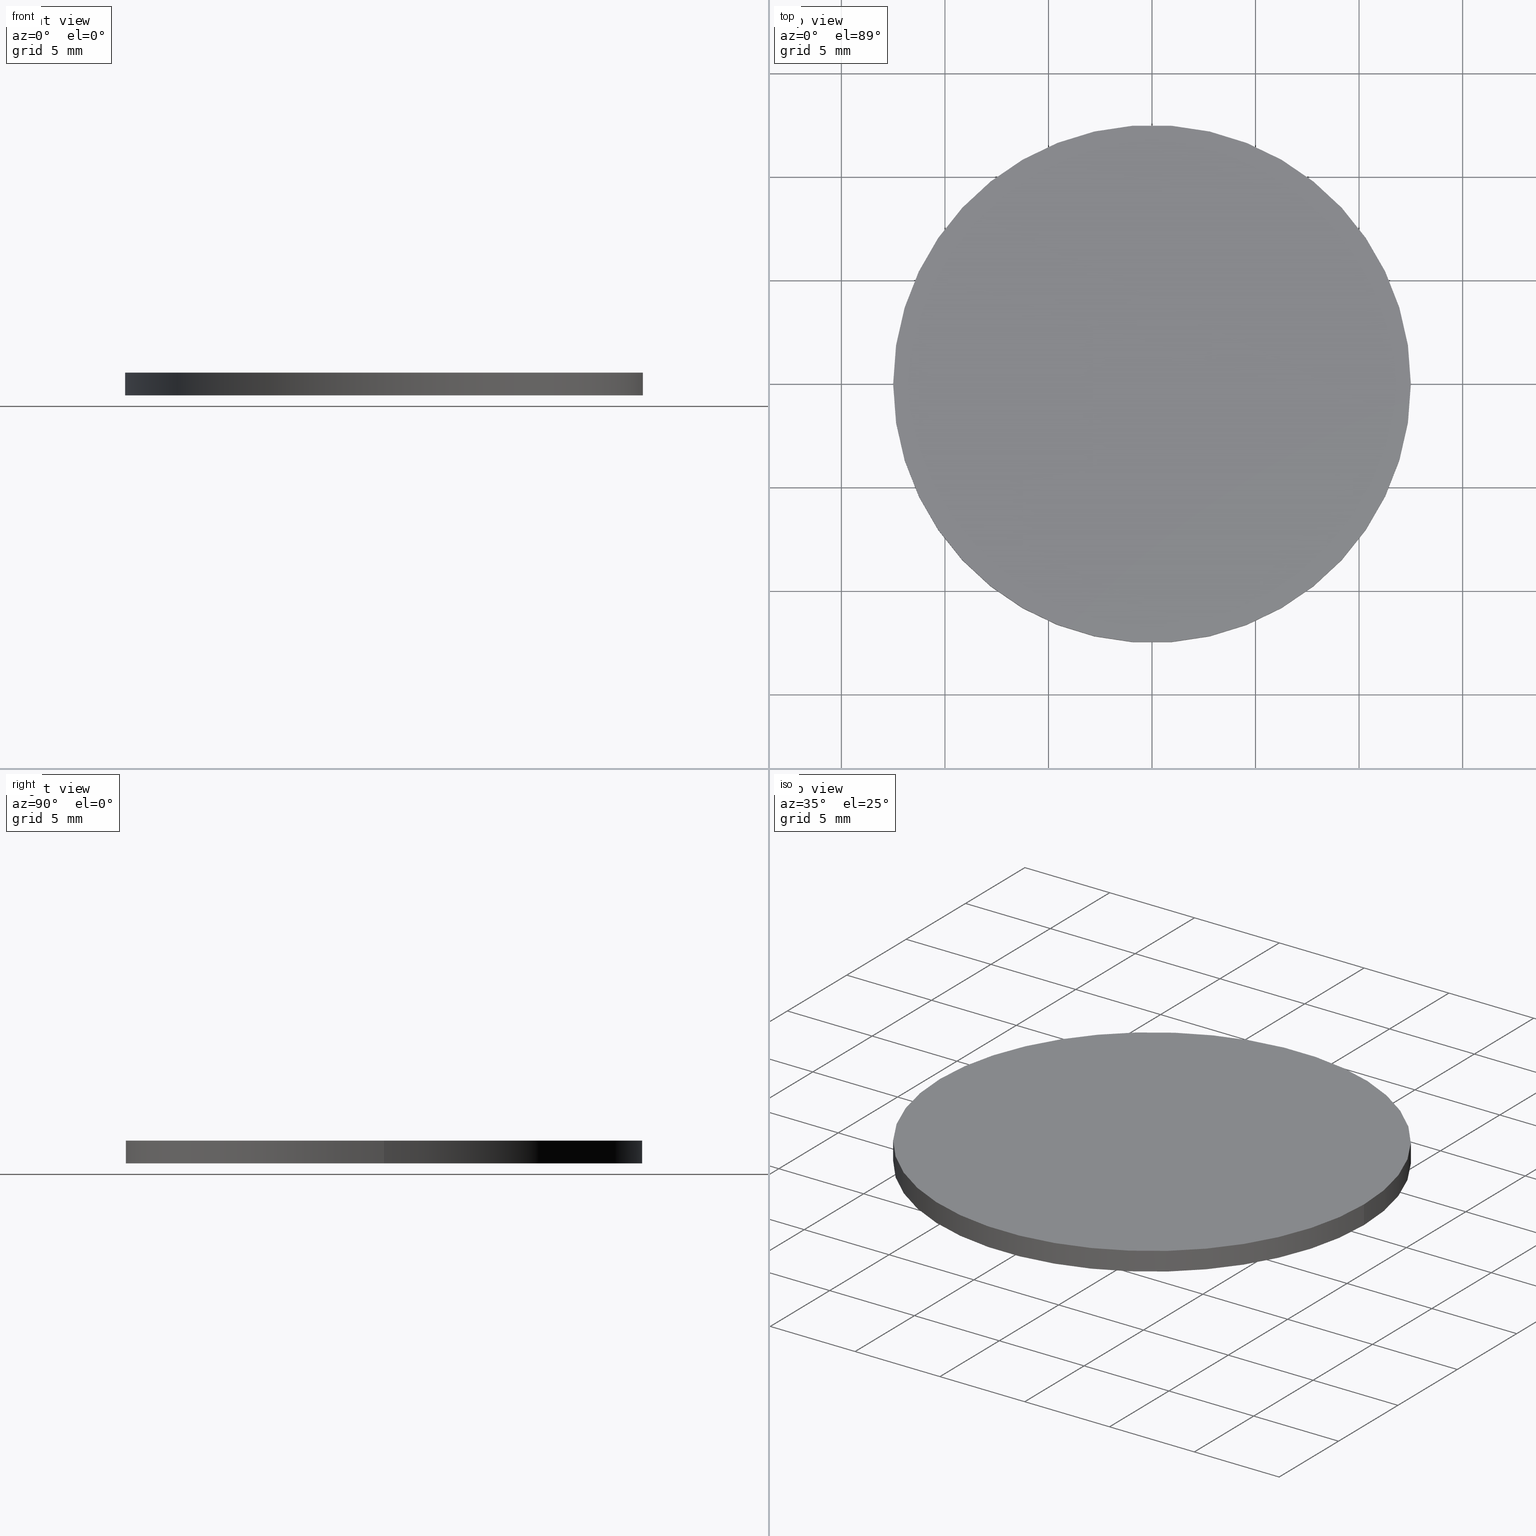
[diagram: canonical four-view strip — front | top / right | iso, engineering-drawing reading convention]
A machine part, canonical four-view strip (front | top / right | iso — engineering-drawing reading convention). The complete STEP part file that produces these views, byte-faithful:
ISO-10303-21;
HEADER;
FILE_DESCRIPTION (( 'STEP AP203' ),
    '1' );
FILE_NAME ('348560.STEP',
    '2025-04-22T01:31:46',
    ( 'Windows User' ),
    ( 'P R C' ),
    'SwSTEP 2.0',
    'SolidWorks 2020',
    '' );
FILE_SCHEMA (( 'CONFIG_CONTROL_DESIGN' ));
ENDSEC;

DATA;
#1 = CC_DESIGN_PERSON_AND_ORGANIZATION_ASSIGNMENT ( #33, #78, ( #57 ) ) ;
#2 = PERSON_AND_ORGANIZATION ( #17, #110 ) ;
#3 =( GEOMETRIC_REPRESENTATION_CONTEXT ( 3 ) GLOBAL_UNCERTAINTY_ASSIGNED_CONTEXT ( ( #69 ) ) GLOBAL_UNIT_ASSIGNED_CONTEXT ( ( #41, #95, #43 ) ) REPRESENTATION_CONTEXT ( 'NONE', 'WORKASPACE' ) );
#4 = CARTESIAN_POINT ( 'NONE',  ( 0.000000000000000000, 0.000000000000000000, 1.100000000000000089 ) ) ;
#5 = PERSON_AND_ORGANIZATION ( #17, #110 ) ;
#6 = DIRECTION ( 'NONE',  ( -0.000000000000000000, -0.000000000000000000, -1.000000000000000000 ) ) ;
#7 = CC_DESIGN_APPROVAL ( #28, ( #27 ) ) ;
#8 = CC_DESIGN_DATE_AND_TIME_ASSIGNMENT ( #81, #92, ( #19 ) ) ;
#9 = PERSON_AND_ORGANIZATION_ROLE ( 'design_supplier' ) ;
#10 = PRODUCT_RELATED_PRODUCT_CATEGORY ( 'detail', '', ( #57 ) ) ;
#11 = EDGE_LOOP ( 'NONE', ( #76 ) ) ;
#12 = CARTESIAN_POINT ( 'NONE',  ( 12.50000000000000000, 0.000000000000000000, 1.100000000000000089 ) ) ;
#13 = COORDINATED_UNIVERSAL_TIME_OFFSET ( 8, 0, .AHEAD. ) ;
#14 = FACE_OUTER_BOUND ( 'NONE', #105, .T. ) ;
#15 = CALENDAR_DATE ( 2025, 22, 4 ) ;
#16 = FACE_OUTER_BOUND ( 'NONE', #11, .T. ) ;
#17 = PERSON ( 'δָ��', 'δָ��', 'δָ��', ('δָ��'), ('δָ��'), ('δָ��') ) ;
#18 = APPROVAL_DATE_TIME ( #37, #28 ) ;
#19 = SECURITY_CLASSIFICATION ( '', '', #72 ) ;
#20 = DIRECTION ( 'NONE',  ( 0.000000000000000000, 0.000000000000000000, 1.000000000000000000 ) ) ;
#21 = PERSON_AND_ORGANIZATION ( #17, #110 ) ;
#22 = APPROVAL_PERSON_ORGANIZATION ( #5, #83, #122 ) ;
#23 = CARTESIAN_POINT ( 'NONE',  ( 0.000000000000000000, 0.000000000000000000, 0.000000000000000000 ) ) ;
#24 = APPLICATION_PROTOCOL_DEFINITION ( 'international standard', 'config_control_design', 1994, #40 ) ;
#25 = SHAPE_DEFINITION_REPRESENTATION ( #70, #118 ) ;
#26 = APPROVAL_STATUS ( 'not_yet_approved' ) ;
#27 = PRODUCT_DEFINITION_FORMATION_WITH_SPECIFIED_SOURCE ( '�κ�', '', #57, .NOT_KNOWN. ) ;
#28 = APPROVAL ( #67, 'δָ��' ) ;
#29 = APPROVAL_STATUS ( 'not_yet_approved' ) ;
#30 = DIRECTION ( 'NONE',  ( 1.000000000000000000, 0.000000000000000000, 0.000000000000000000 ) ) ;
#31 = CC_DESIGN_PERSON_AND_ORGANIZATION_ASSIGNMENT ( #60, #61, ( #19 ) ) ;
#32 = PLANE ( 'NONE',  #131 ) ;
#33 = PERSON_AND_ORGANIZATION ( #17, #110 ) ;
#34 = PLANE ( 'NONE',  #45 ) ;
#35 = MANIFOLD_SOLID_BREP ( '͹̨-����1', #104 ) ;
#36 = AXIS2_PLACEMENT_3D ( 'NONE', #23, #107, #30 ) ;
#37 = DATE_AND_TIME ( #50, #103 ) ;
#38 = CC_DESIGN_SECURITY_CLASSIFICATION ( #19, ( #27 ) ) ;
#39 = LOCAL_TIME ( 9, 31, 46.00000000000000000, #111 ) ;
#40 = APPLICATION_CONTEXT ( 'configuration controlled 3d designs of mechanical parts and assemblies' ) ;
#41 =( LENGTH_UNIT ( ) NAMED_UNIT ( * ) SI_UNIT ( .MILLI., .METRE. ) );
#42 = DIRECTION ( 'NONE',  ( 1.000000000000000000, 0.000000000000000000, 0.000000000000000000 ) ) ;
#43 =( NAMED_UNIT ( * ) SI_UNIT ( $, .STERADIAN. ) SOLID_ANGLE_UNIT ( ) );
#44 = PERSON_AND_ORGANIZATION_ROLE ( 'creator' ) ;
#45 = AXIS2_PLACEMENT_3D ( 'NONE', #124, #97, #135 ) ;
#46 = CARTESIAN_POINT ( 'NONE',  ( 0.000000000000000000, 0.000000000000000000, 0.000000000000000000 ) ) ;
#47 = CALENDAR_DATE ( 2025, 22, 4 ) ;
#48 = CALENDAR_DATE ( 2025, 22, 4 ) ;
#49 = PERSON_AND_ORGANIZATION_ROLE ( 'creator' ) ;
#50 = CALENDAR_DATE ( 2025, 22, 4 ) ;
#51 = ORIENTED_EDGE ( 'NONE', *, *, #116, .F. ) ;
#52 = CC_DESIGN_PERSON_AND_ORGANIZATION_ASSIGNMENT ( #21, #44, ( #109 ) ) ;
#53 = LOCAL_TIME ( 9, 31, 46.00000000000000000, #114 ) ;
#54 = EDGE_LOOP ( 'NONE', ( #132 ) ) ;
#55 = APPROVAL_DATE_TIME ( #74, #83 ) ;
#56 = CYLINDRICAL_SURFACE ( 'NONE', #84, 12.50000000000000000 ) ;
#57 = PRODUCT ( '348560', '348560', '', ( #106 ) ) ;
#58 = CC_DESIGN_PERSON_AND_ORGANIZATION_ASSIGNMENT ( #59, #49, ( #27 ) ) ;
#59 = PERSON_AND_ORGANIZATION ( #17, #110 ) ;
#60 = PERSON_AND_ORGANIZATION ( #17, #110 ) ;
#61 = PERSON_AND_ORGANIZATION_ROLE ( 'classification_officer' ) ;
#62 = LOCAL_TIME ( 9, 31, 46.00000000000000000, #13 ) ;
#63 = AXIS2_PLACEMENT_3D ( 'NONE', #46, #126, #134 ) ;
#64 = FACE_OUTER_BOUND ( 'NONE', #54, .T. ) ;
#65 = CC_DESIGN_DATE_AND_TIME_ASSIGNMENT ( #68, #88, ( #109 ) ) ;
#66 = DIRECTION ( 'NONE',  ( 1.000000000000000000, 0.000000000000000000, -0.000000000000000000 ) ) ;
#67 = APPROVAL_STATUS ( 'not_yet_approved' ) ;
#68 = DATE_AND_TIME ( #15, #62 ) ;
#69 = UNCERTAINTY_MEASURE_WITH_UNIT (LENGTH_MEASURE( 1.000000000000000082E-05 ), #41, 'distance_accuracy_value', 'NONE');
#70 = PRODUCT_DEFINITION_SHAPE ( 'NONE', 'NONE',  #109 ) ;
#71 = EDGE_CURVE ( 'NONE', #113, #113, #96, .T. ) ;
#72 = SECURITY_CLASSIFICATION_LEVEL ( 'unclassified' ) ;
#73 = AXIS2_PLACEMENT_3D ( 'NONE', #4, #133, #42 ) ;
#74 = DATE_AND_TIME ( #47, #39 ) ;
#75 = FACE_OUTER_BOUND ( 'NONE', #112, .T. ) ;
#76 = ORIENTED_EDGE ( 'NONE', *, *, #71, .F. ) ;
#77 = ORIENTED_EDGE ( 'NONE', *, *, #116, .T. ) ;
#78 = PERSON_AND_ORGANIZATION_ROLE ( 'design_owner' ) ;
#79 = DATE_AND_TIME ( #115, #100 ) ;
#80 = CIRCLE ( 'NONE', #36, 12.50000000000000000 ) ;
#81 = DATE_AND_TIME ( #48, #53 ) ;
#82 = APPROVAL_ROLE ( '' ) ;
#83 = APPROVAL ( #29, 'δָ��' ) ;
#84 = AXIS2_PLACEMENT_3D ( 'NONE', #99, #6, #125 ) ;
#85 = APPLICATION_PROTOCOL_DEFINITION ( 'international standard', 'config_control_design', 1994, #93 ) ;
#86 = CARTESIAN_POINT ( 'NONE',  ( 0.000000000000000000, 0.000000000000000000, 0.000000000000000000 ) ) ;
#87 = CARTESIAN_POINT ( 'NONE',  ( 12.50000000000000000, 0.000000000000000000, 0.000000000000000000 ) ) ;
#88 = DATE_TIME_ROLE ( 'creation_date' ) ;
#89 = APPROVAL ( #26, 'δָ��' ) ;
#90 = APPROVAL_DATE_TIME ( #79, #89 ) ;
#91 = CC_DESIGN_APPROVAL ( #89, ( #19 ) ) ;
#92 = DATE_TIME_ROLE ( 'classification_date' ) ;
#93 = APPLICATION_CONTEXT ( 'configuration controlled 3d designs of mechanical parts and assemblies' ) ;
#94 = ADVANCED_FACE ( 'NONE', ( #14 ), #32, .F. ) ;
#95 =( NAMED_UNIT ( * ) PLANE_ANGLE_UNIT ( ) SI_UNIT ( $, .RADIAN. ) );
#96 = CIRCLE ( 'NONE', #73, 12.50000000000000000 ) ;
#97 = DIRECTION ( 'NONE',  ( 0.000000000000000000, 0.000000000000000000, 1.000000000000000000 ) ) ;
#98 = CC_DESIGN_PERSON_AND_ORGANIZATION_ASSIGNMENT ( #2, #9, ( #27 ) ) ;
#99 = CARTESIAN_POINT ( 'NONE',  ( 0.000000000000000000, 0.000000000000000000, 1.100000000000000089 ) ) ;
#100 = LOCAL_TIME ( 9, 31, 46.00000000000000000, #102 ) ;
#101 = PERSON_AND_ORGANIZATION ( #17, #110 ) ;
#102 = COORDINATED_UNIVERSAL_TIME_OFFSET ( 8, 0, .AHEAD. ) ;
#103 = LOCAL_TIME ( 9, 31, 46.00000000000000000, #128 ) ;
#104 = CLOSED_SHELL ( 'NONE', ( #120, #129, #94 ) ) ;
#105 = EDGE_LOOP ( 'NONE', ( #51 ) ) ;
#106 = MECHANICAL_CONTEXT ( 'NONE', #40, 'mechanical' ) ;
#107 = DIRECTION ( 'NONE',  ( 0.000000000000000000, 0.000000000000000000, 1.000000000000000000 ) ) ;
#108 = APPROVAL_ROLE ( '' ) ;
#109 = PRODUCT_DEFINITION ( 'δ֪', '', #27, #127 ) ;
#110 = ORGANIZATION ( 'δָ��', 'δָ��', '' ) ;
#111 = COORDINATED_UNIVERSAL_TIME_OFFSET ( 8, 0, .AHEAD. ) ;
#112 = EDGE_LOOP ( 'NONE', ( #77 ) ) ;
#113 = VERTEX_POINT ( 'NONE', #12 ) ;
#114 = COORDINATED_UNIVERSAL_TIME_OFFSET ( 8, 0, .AHEAD. ) ;
#115 = CALENDAR_DATE ( 2025, 22, 4 ) ;
#116 = EDGE_CURVE ( 'NONE', #121, #121, #80, .T. ) ;
#117 = APPROVAL_PERSON_ORGANIZATION ( #101, #89, #82 ) ;
#118 = ADVANCED_BREP_SHAPE_REPRESENTATION ( '348560', ( #35, #63 ), #3 ) ;
#119 = PERSON_AND_ORGANIZATION ( #17, #110 ) ;
#120 = ADVANCED_FACE ( 'NONE', ( #16, #75 ), #56, .T. ) ;
#121 = VERTEX_POINT ( 'NONE', #87 ) ;
#122 = APPROVAL_ROLE ( '' ) ;
#123 = CC_DESIGN_APPROVAL ( #83, ( #109 ) ) ;
#124 = CARTESIAN_POINT ( 'NONE',  ( 0.000000000000000000, 0.000000000000000000, 1.100000000000000089 ) ) ;
#125 = DIRECTION ( 'NONE',  ( -1.000000000000000000, 0.000000000000000000, 0.000000000000000000 ) ) ;
#126 = DIRECTION ( 'NONE',  ( 0.000000000000000000, 0.000000000000000000, 1.000000000000000000 ) ) ;
#127 = DESIGN_CONTEXT ( 'detailed design', #93, 'design' ) ;
#128 = COORDINATED_UNIVERSAL_TIME_OFFSET ( 8, 0, .AHEAD. ) ;
#129 = ADVANCED_FACE ( 'NONE', ( #64 ), #34, .T. ) ;
#130 = APPROVAL_PERSON_ORGANIZATION ( #119, #28, #108 ) ;
#131 = AXIS2_PLACEMENT_3D ( 'NONE', #86, #20, #66 ) ;
#132 = ORIENTED_EDGE ( 'NONE', *, *, #71, .T. ) ;
#133 = DIRECTION ( 'NONE',  ( 0.000000000000000000, 0.000000000000000000, 1.000000000000000000 ) ) ;
#134 = DIRECTION ( 'NONE',  ( 1.000000000000000000, 0.000000000000000000, 0.000000000000000000 ) ) ;
#135 = DIRECTION ( 'NONE',  ( 1.000000000000000000, 0.000000000000000000, -0.000000000000000000 ) ) ;
ENDSEC;
END-ISO-10303-21;
